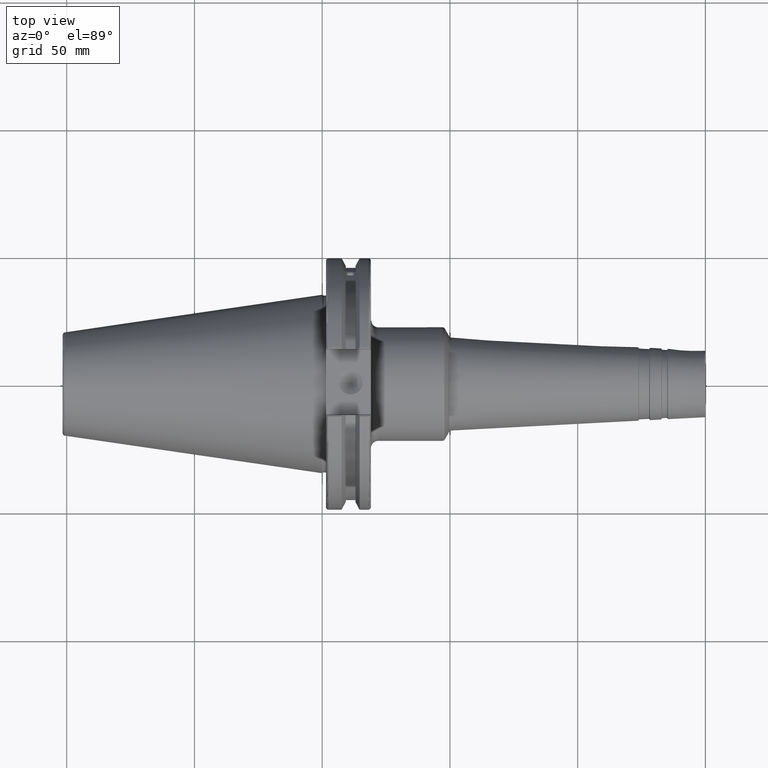
[diagram: clean part render]
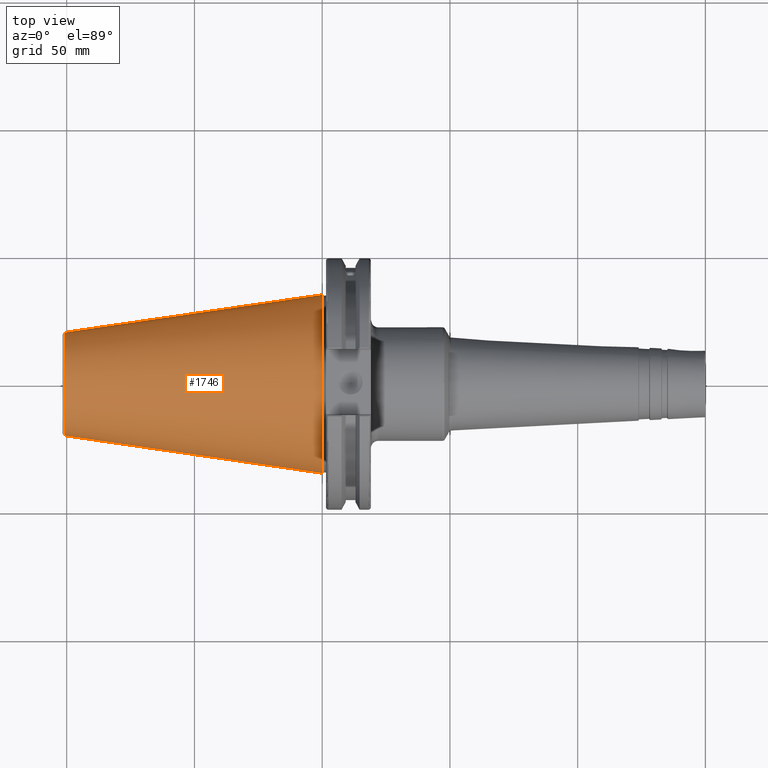
[diagram: same view with one face highlighted and labeled with its STEP entity id]
A machine part, top view. The second image highlights one B-rep face of the part: STEP entity #1746.
In plain terms, the highlighted conical surface has half-angle 8.297 deg.
Its self-contained STEP definition (entity closure, byte-faithful):
#51=CONICAL_SURFACE('',#1953,27.5166666666666,0.14481249823894);
#233=FACE_OUTER_BOUND('',#348,.T.);
#348=EDGE_LOOP('',(#1499,#1500,#1501,#1502,#1503));
#465=LINE('',#3431,#568);
#568=VECTOR('',#2393,27.5166666666666);
#667=CIRCLE('',#1947,20.233121911427);
#668=CIRCLE('',#1948,20.233121911427);
#672=CIRCLE('',#1954,34.925);
#842=VERTEX_POINT('',#3418);
#843=VERTEX_POINT('',#3419);
#846=VERTEX_POINT('',#3429);
#1077=EDGE_CURVE('',#842,#843,#667,.T.);
#1078=EDGE_CURVE('',#843,#842,#668,.T.);
#1082=EDGE_CURVE('',#846,#846,#672,.T.);
#1083=EDGE_CURVE('',#846,#843,#465,.T.);
#1499=ORIENTED_EDGE('',*,*,#1082,.F.);
#1500=ORIENTED_EDGE('',*,*,#1083,.T.);
#1501=ORIENTED_EDGE('',*,*,#1077,.F.);
#1502=ORIENTED_EDGE('',*,*,#1078,.F.);
#1503=ORIENTED_EDGE('',*,*,#1083,.F.);
#1746=ADVANCED_FACE('',(#233),#51,.T.);
#1947=AXIS2_PLACEMENT_3D('',#3420,#2377,#2378);
#1948=AXIS2_PLACEMENT_3D('',#3421,#2379,#2380);
#1953=AXIS2_PLACEMENT_3D('',#3428,#2389,#2390);
#1954=AXIS2_PLACEMENT_3D('',#3430,#2391,#2392);
#2377=DIRECTION('center_axis',(-1.,0.,0.));
#2378=DIRECTION('ref_axis',(0.,-1.,3.06161699786838E-17));
#2379=DIRECTION('center_axis',(-1.,0.,0.));
#2380=DIRECTION('ref_axis',(0.,-1.,3.06161699786838E-17));
#2389=DIRECTION('center_axis',(1.,0.,0.));
#2390=DIRECTION('ref_axis',(0.,1.,0.));
#2391=DIRECTION('center_axis',(1.,0.,0.));
#2392=DIRECTION('ref_axis',(0.,0.,-1.));
#2393=DIRECTION('',(-0.989532981063281,0.144306893071729,1.76724974695192E-17));
#3418=CARTESIAN_POINT('',(-100.744306893072,-2.47784279855872E-15,20.233121911427));
#3419=CARTESIAN_POINT('',(-100.744306893072,-20.233121911427,-2.47784279855872E-15));
#3420=CARTESIAN_POINT('Origin',(-100.744306893072,0.,-3.09730349819841E-15));
#3421=CARTESIAN_POINT('Origin',(-100.744306893072,0.,-3.09730349819841E-15));
#3428=CARTESIAN_POINT('Origin',(-50.8,0.,0.));
#3429=CARTESIAN_POINT('',(-8.88178419700125E-15,-34.925,-4.27707894602213E-15));
#3430=CARTESIAN_POINT('Origin',(0.,0.,0.));
#3431=CARTESIAN_POINT('',(-50.8,-27.5166666666666,-3.3698197756538E-15));